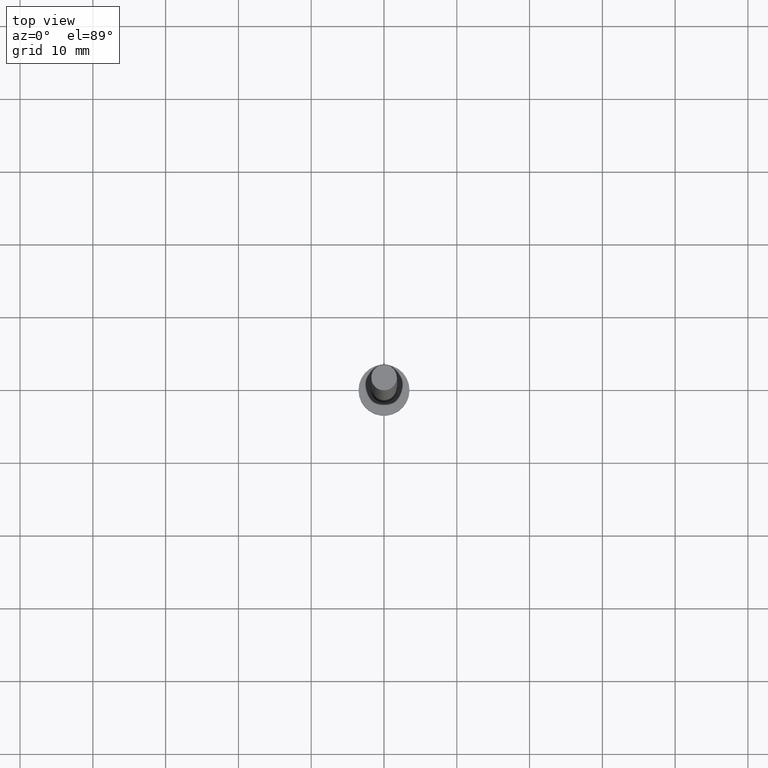
[diagram: clean part render]
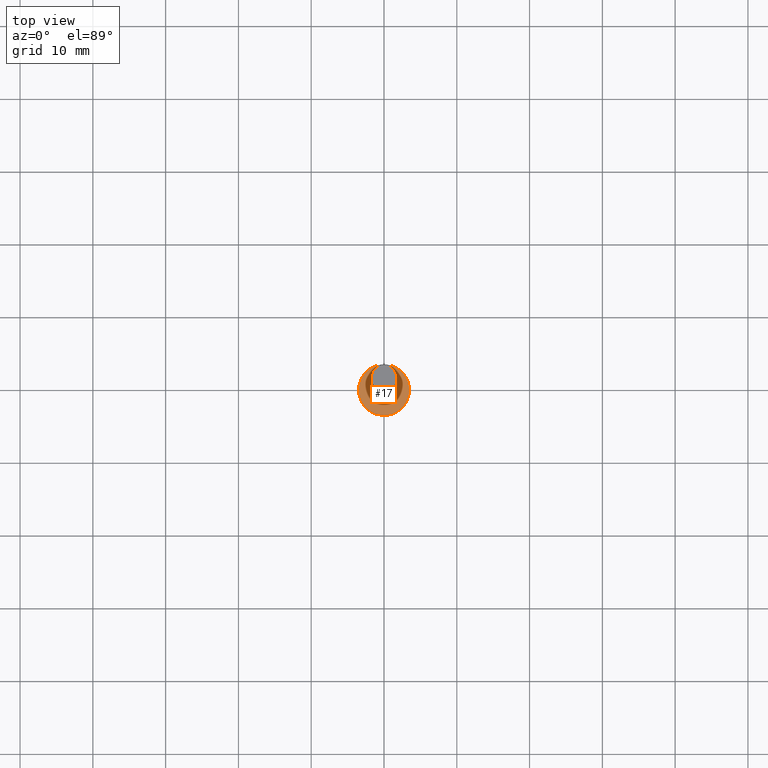
[diagram: same view with one face highlighted and labeled with its STEP entity id]
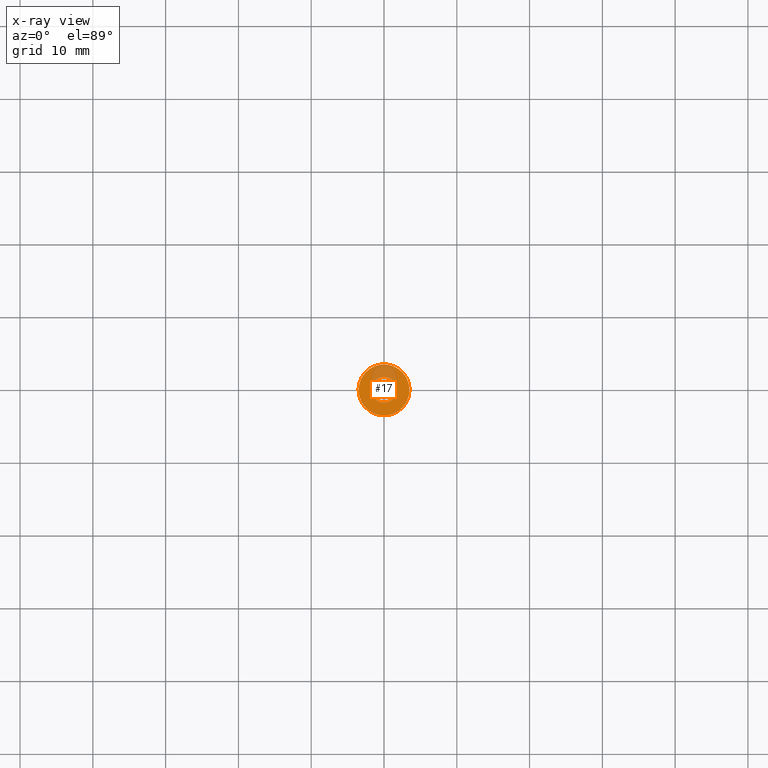
[diagram: x-ray of the same camera — body ghosted, the highlighted face saturated]
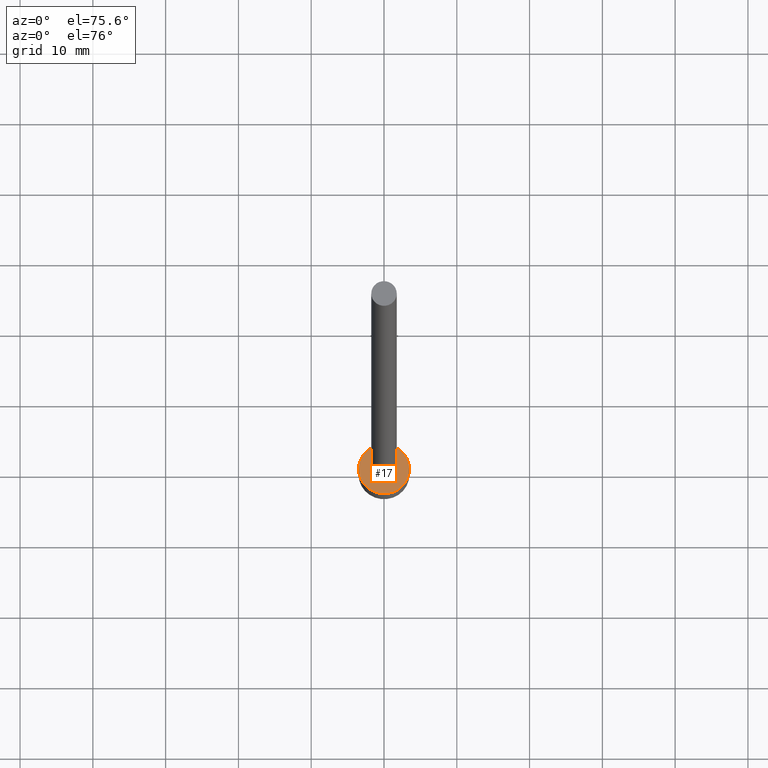
[diagram: same view with one face highlighted and labeled with its STEP entity id]
A machine part, top view. The second image highlights one B-rep face of the part: STEP entity #17.
The next image is the same camera in x-ray: the body ghosted, the highlighted face saturated — about 21% of this face is hidden behind the body in this view.
A second angle (auxiliary view) of the same face is appended — the face is thin or edge-on in the first view.
In plain terms, the highlighted planar face has unit normal (0, 0, 1).
Its self-contained STEP definition (entity closure, byte-faithful):
#4 = ORIENTED_EDGE ( 'NONE', *, *, #32, .T. ) ;
#8 = VERTEX_POINT ( 'NONE', #23 ) ;
#17 = ADVANCED_FACE ( 'NONE', ( #211, #232 ), #144, .T. ) ;
#23 = CARTESIAN_POINT ( 'NONE',  ( 3.500000000000000444, 4.286263797015737088E-16, 3.000000000000000000 ) ) ;
#32 = EDGE_CURVE ( 'NONE', #242, #8, #45, .T. ) ;
#35 = AXIS2_PLACEMENT_3D ( 'NONE', #100, #222, #118 ) ;
#41 = DIRECTION ( 'NONE',  ( 0.000000000000000000, 0.000000000000000000, 1.000000000000000000 ) ) ;
#43 = CIRCLE ( 'NONE', #182, 1.750000000000000000 ) ;
#45 = CIRCLE ( 'NONE', #87, 3.500000000000000444 ) ;
#57 = DIRECTION ( 'NONE',  ( 0.000000000000000000, 0.000000000000000000, 1.000000000000000000 ) ) ;
#61 = EDGE_LOOP ( 'NONE', ( #205, #246 ) ) ;
#80 = VERTEX_POINT ( 'NONE', #235 ) ;
#81 = EDGE_CURVE ( 'NONE', #80, #170, #43, .T. ) ;
#87 = AXIS2_PLACEMENT_3D ( 'NONE', #91, #109, #92 ) ;
#91 = CARTESIAN_POINT ( 'NONE',  ( 0.000000000000000000, 0.000000000000000000, 3.000000000000000000 ) ) ;
#92 = DIRECTION ( 'NONE',  ( 1.000000000000000000, 0.000000000000000000, 0.000000000000000000 ) ) ;
#100 = CARTESIAN_POINT ( 'NONE',  ( 0.000000000000000000, 0.000000000000000000, 3.000000000000000000 ) ) ;
#107 = CIRCLE ( 'NONE', #35, 3.500000000000000444 ) ;
#109 = DIRECTION ( 'NONE',  ( 0.000000000000000000, 0.000000000000000000, 1.000000000000000000 ) ) ;
#110 = EDGE_CURVE ( 'NONE', #170, #80, #183, .T. ) ;
#113 = CARTESIAN_POINT ( 'NONE',  ( 0.000000000000000000, 0.000000000000000000, 3.000000000000000000 ) ) ;
#118 = DIRECTION ( 'NONE',  ( 1.000000000000000000, 0.000000000000000000, 0.000000000000000000 ) ) ;
#129 = EDGE_LOOP ( 'NONE', ( #4, #244 ) ) ;
#130 = CARTESIAN_POINT ( 'NONE',  ( 0.000000000000000000, 0.000000000000000000, 3.000000000000000000 ) ) ;
#135 = CARTESIAN_POINT ( 'NONE',  ( -3.500000000000000444, 0.000000000000000000, 3.000000000000000000 ) ) ;
#141 = DIRECTION ( 'NONE',  ( 1.000000000000000000, 0.000000000000000000, 0.000000000000000000 ) ) ;
#142 = AXIS2_PLACEMENT_3D ( 'NONE', #218, #179, #141 ) ;
#144 = PLANE ( 'NONE',  #152 ) ;
#152 = AXIS2_PLACEMENT_3D ( 'NONE', #113, #41, #230 ) ;
#170 = VERTEX_POINT ( 'NONE', #249 ) ;
#174 = EDGE_CURVE ( 'NONE', #8, #242, #107, .T. ) ;
#179 = DIRECTION ( 'NONE',  ( 0.000000000000000000, 0.000000000000000000, 1.000000000000000000 ) ) ;
#182 = AXIS2_PLACEMENT_3D ( 'NONE', #130, #57, #216 ) ;
#183 = CIRCLE ( 'NONE', #142, 1.750000000000000000 ) ;
#205 = ORIENTED_EDGE ( 'NONE', *, *, #81, .F. ) ;
#211 = FACE_BOUND ( 'NONE', #61, .T. ) ;
#216 = DIRECTION ( 'NONE',  ( 1.000000000000000000, 0.000000000000000000, 0.000000000000000000 ) ) ;
#218 = CARTESIAN_POINT ( 'NONE',  ( 0.000000000000000000, 0.000000000000000000, 3.000000000000000000 ) ) ;
#222 = DIRECTION ( 'NONE',  ( 0.000000000000000000, 0.000000000000000000, 1.000000000000000000 ) ) ;
#230 = DIRECTION ( 'NONE',  ( 1.000000000000000000, 0.000000000000000000, -0.000000000000000000 ) ) ;
#232 = FACE_OUTER_BOUND ( 'NONE', #129, .T. ) ;
#235 = CARTESIAN_POINT ( 'NONE',  ( -1.750000000000000000, 0.000000000000000000, 3.000000000000000000 ) ) ;
#242 = VERTEX_POINT ( 'NONE', #135 ) ;
#244 = ORIENTED_EDGE ( 'NONE', *, *, #174, .T. ) ;
#246 = ORIENTED_EDGE ( 'NONE', *, *, #110, .F. ) ;
#249 = CARTESIAN_POINT ( 'NONE',  ( 1.750000000000000000, 2.143131898507867804E-16, 3.000000000000000000 ) ) ;